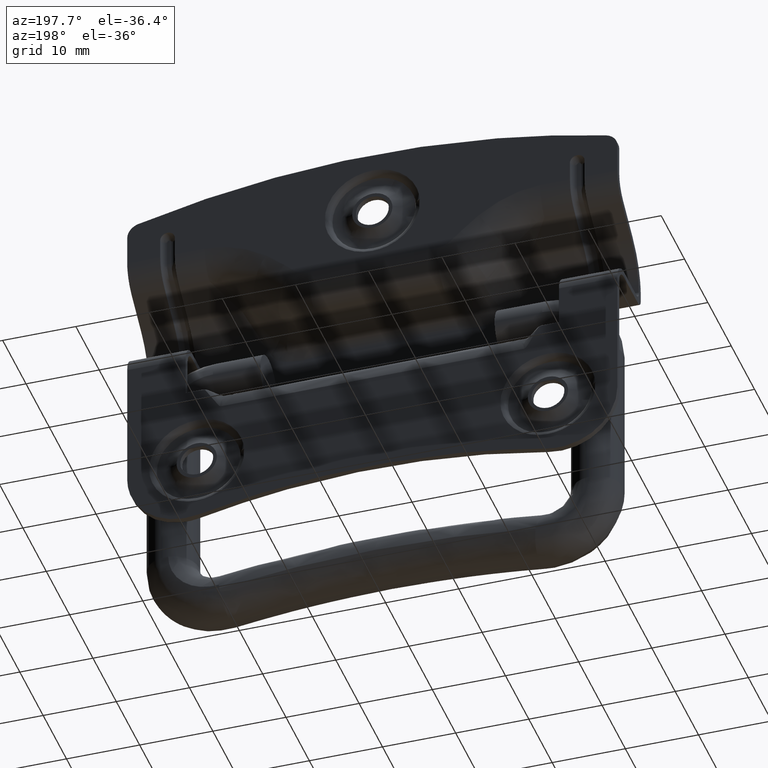
[diagram: clean part render]
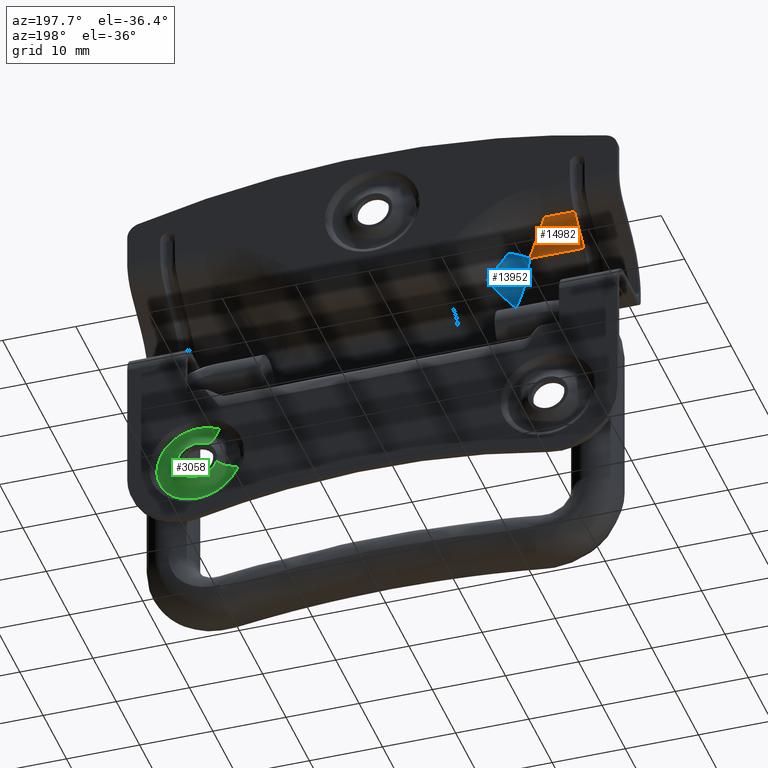
[diagram: same view with three faces highlighted in distinct colors, each labeled with its STEP entity id]
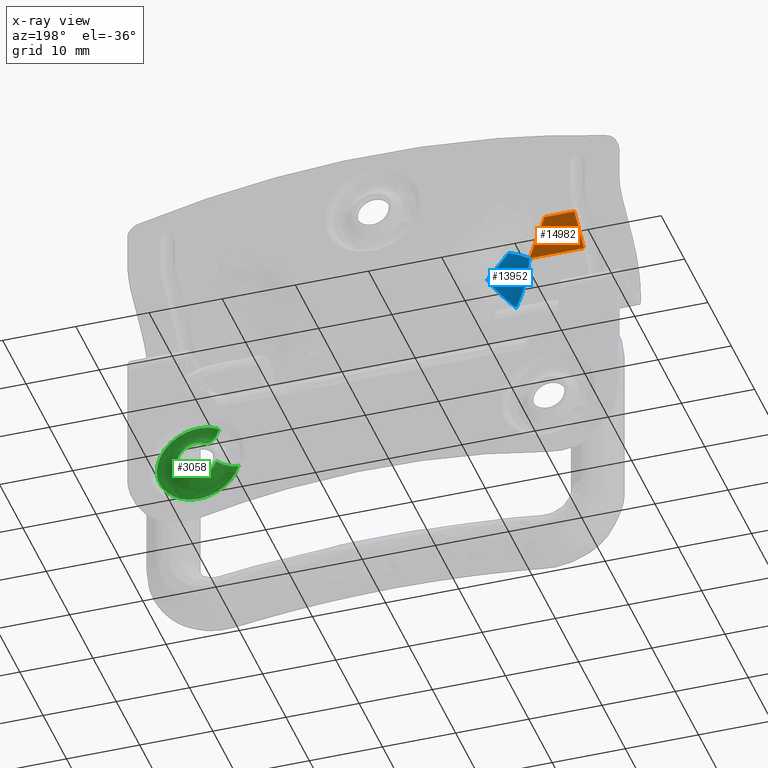
[diagram: x-ray of the same camera — body ghosted, the three highlighted faces saturated]
A machine part, auxiliary view with three faces highlighted in distinct colors.
The next image is the same camera in x-ray (body ghosted, the three faces saturated) — at least one of them is partly hidden behind the body in this view.
Their STEP definitions:

[orange] entity #14982 — the highlighted face is a freeform B-spline surface patch.
#10843=CARTESIAN_POINT('',(-22.923475820353751,3.780000000000115,15.160000000000601));
#10844=VERTEX_POINT('',#10843);
#10858=CARTESIAN_POINT('',(-27.0,3.780000000000000,15.160000000000551));
#10859=VERTEX_POINT('',#10858);
#10860=CARTESIAN_POINT('',(-27.0,3.780000000000000,15.160000000000551));
#10861=CARTESIAN_POINT('',(-22.923475820353751,3.780000000000115,15.160000000000601));
#10862=QUASI_UNIFORM_CURVE('',1,(#10860,#10861),.UNSPECIFIED.,.F.,.U.);
#10863=EDGE_CURVE('',#10859,#10844,#10862,.T.);
#13907=CARTESIAN_POINT('',(-19.585318980685400,-0.299999770619768,12.100000172035459));
#13908=VERTEX_POINT('',#13907);
#14012=CARTESIAN_POINT('',(-22.923475820353751,3.780000000000115,15.160000000000601));
#14013=CARTESIAN_POINT('',(-19.585318980685400,-0.299999770619768,12.100000172035459));
#14014=QUASI_UNIFORM_CURVE('',1,(#14012,#14013),.UNSPECIFIED.,.F.,.U.);
#14015=EDGE_CURVE('',#10844,#13908,#14014,.T.);
#14821=CARTESIAN_POINT('',(-27.0,-0.299999770619768,12.100000172035459));
#14822=VERTEX_POINT('',#14821);
#14836=CARTESIAN_POINT('',(-19.585318980685400,-0.299999770619768,12.100000172035459));
#14837=CARTESIAN_POINT('',(-27.0,-0.299999770619768,12.100000172035459));
#14838=QUASI_UNIFORM_CURVE('',1,(#14836,#14837),.UNSPECIFIED.,.F.,.U.);
#14839=EDGE_CURVE('',#13908,#14822,#14838,.T.);
#14967=CARTESIAN_POINT('',(-27.370363276053229,3.983795889457883,15.312846917093941));
#14968=CARTESIAN_POINT('',(-27.370363276053229,-0.503795550643417,11.947153337017710));
#14969=CARTESIAN_POINT('',(-19.214956036094240,3.983795889457883,15.312846917093941));
#14970=CARTESIAN_POINT('',(-19.214956036094240,-0.503795550643417,11.947153337017710));
#14971=B_SPLINE_SURFACE_WITH_KNOTS('',1,1,((#14967,#14969),(#14968,#14970)),.UNSPECIFIED.,.F.,.F.,.U.,(2,2),(2,2),(0.0,5.609489300126778),(0.0,8.155407239958983),.UNSPECIFIED.);
#14972=CARTESIAN_POINT('',(-27.0,-0.299999770619768,12.100000172035459));
#14973=CARTESIAN_POINT('',(-27.0,3.780000000000000,15.160000000000551));
#14974=QUASI_UNIFORM_CURVE('',1,(#14972,#14973),.UNSPECIFIED.,.F.,.U.);
#14975=EDGE_CURVE('',#14822,#10859,#14974,.T.);
#14976=ORIENTED_EDGE('',*,*,#14975,.T.);
#14977=ORIENTED_EDGE('',*,*,#10863,.T.);
#14978=ORIENTED_EDGE('',*,*,#14015,.T.);
#14979=ORIENTED_EDGE('',*,*,#14839,.T.);
#14980=EDGE_LOOP('',(#14976,#14977,#14978,#14979));
#14981=FACE_OUTER_BOUND('',#14980,.T.);
#14982=ADVANCED_FACE('',(#14981),#14971,.F.);

[blue] entity #13952 — the highlighted face is a freeform B-spline surface patch.
#10930=CARTESIAN_POINT('',(-17.290593837336449,1.554545514222405,12.130590759068740));
#10931=VERTEX_POINT('',#10930);
#11035=CARTESIAN_POINT('',(-15.293577102620651,0.899999999999904,10.392166128210640));
#11036=VERTEX_POINT('',#11035);
#11050=CARTESIAN_POINT('',(-17.290593837336449,1.554545514222405,12.130590759068740));
#11051=CARTESIAN_POINT('',(-17.117731346489158,1.489969893044350,11.996901596663150));
#11052=CARTESIAN_POINT('',(-16.948719537414888,1.425397508481139,11.858787750625041));
#11053=CARTESIAN_POINT('',(-16.614161943319790,1.300946579735866,11.576811152313310));
#11054=CARTESIAN_POINT('',(-16.448631377484840,1.241074090847133,11.432928637069621));
#11055=CARTESIAN_POINT('',(-16.118501549110039,1.128984421325280,11.141211421472230));
#11056=CARTESIAN_POINT('',(-15.953921277880150,1.076746895402701,10.993362565172159));
#11057=CARTESIAN_POINT('',(-15.624286635092380,0.981392190502690,10.694775514834831));
#11058=CARTESIAN_POINT('',(-15.459245139194810,0.938256169626591,10.544029624157410));
#11059=CARTESIAN_POINT('',(-15.293577102620651,0.899999999999904,10.392166128210640));
#11060=B_SPLINE_CURVE_WITH_KNOTS('',3,(#11050,#11051,#11052,#11053,#11054,#11055,#11056,#11057,#11058,#11059),.UNSPECIFIED.,.F.,.U.,(4,2,2,2,4),(0.0,0.250000000000000,0.500000000000001,0.750000000000001,1.0),.UNSPECIFIED.);
#11061=EDGE_CURVE('',#10931,#11036,#11060,.T.);
#13734=CARTESIAN_POINT('',(-16.750733359926400,-3.408998570119250,6.903221350314410));
#13735=VERTEX_POINT('',#13734);
#13736=CARTESIAN_POINT('',(-14.047823925887840,0.545500714940306,9.250217225951371));
#13737=VERTEX_POINT('',#13736);
#13738=CARTESIAN_POINT('',(-16.750733359926429,-3.408998570119254,6.903221350314359));
#13739=CARTESIAN_POINT('',(-16.419907771483171,-3.355335998857890,7.255955449708694));
#13740=CARTESIAN_POINT('',(-16.089179347000549,-3.212957998170468,7.595086989676330));
#13741=CARTESIAN_POINT('',(-15.471097452302070,-2.769360321068948,8.201867195278870));
#13742=CARTESIAN_POINT('',(-15.183925513645409,-2.468270929943377,8.469337648677247));
#13743=CARTESIAN_POINT('',(-14.690813450022899,-1.746821931877613,8.897517729361578));
#13744=CARTESIAN_POINT('',(-14.485018152793520,-1.326674215566522,9.058101599529692));
#13745=CARTESIAN_POINT('',(-14.181818111543000,-0.422387753018799,9.251290818259935));
#13746=CARTESIAN_POINT('',(-14.084502417818760,0.061485402957188,9.283839426865114));
#13747=CARTESIAN_POINT('',(-14.047823925887840,0.545500714940306,9.250217225951371));
#13748=B_SPLINE_CURVE_WITH_KNOTS('',3,(#13738,#13739,#13740,#13741,#13742,#13743,#13744,#13745,#13746,#13747),.UNSPECIFIED.,.F.,.U.,(4,2,2,2,4),(0.0,0.250000000000000,0.500000000000000,0.750000000000000,1.0),.UNSPECIFIED.);
#13749=EDGE_CURVE('',#13735,#13737,#13748,.T.);
#13875=CARTESIAN_POINT('',(-19.585318980682160,-0.299999610044783,12.100000292466691));
#13876=CARTESIAN_POINT('',(-19.289840303858998,-1.022286302826926,11.558285341644600));
#13877=CARTESIAN_POINT('',(-18.896928281386561,-1.720429733563290,10.837941291222331));
#13878=CARTESIAN_POINT('',(-18.172696309418150,-2.553767069323316,9.510172808061734));
#13879=CARTESIAN_POINT('',(-17.909338162568510,-2.795805937602147,9.027345947280486));
#13880=CARTESIAN_POINT('',(-17.350015012798149,-3.181224768585006,8.001912549709497));
#13881=CARTESIAN_POINT('',(-17.054181127753552,-3.324363054670496,7.459546394323228));
#13882=CARTESIAN_POINT('',(-16.750733359926048,-3.408998570119349,6.903221350313733));
#13883=CARTESIAN_POINT('',(-17.885077956707590,0.590301766076866,12.767726239797772));
#13884=CARTESIAN_POINT('',(-17.535867620187723,-0.046048626976868,12.447614384670569));
#13885=CARTESIAN_POINT('',(-17.068794465886629,-0.702137821523665,12.019460809970848));
#13886=CARTESIAN_POINT('',(-16.173865589512669,-1.632128234895977,11.199103240665712));
#13887=CARTESIAN_POINT('',(-15.843582562360115,-1.933019555201221,10.896341548105962));
#13888=CARTESIAN_POINT('',(-15.123227416092655,-2.501824451951979,10.236011087917923));
#13889=CARTESIAN_POINT('',(-14.733256194598226,-2.769673108269402,9.878534810430612));
#13890=CARTESIAN_POINT('',(-14.317585942583579,-3.014322489327364,9.497500913114983));
#13891=CARTESIAN_POINT('',(-16.882409546643881,2.100000194978469,11.848606697027771));
#13892=CARTESIAN_POINT('',(-16.587075048866811,1.739033062809609,11.577881394588470));
#13893=CARTESIAN_POINT('',(-16.194018847392979,1.389785131100215,11.217577197751750));
#13894=CARTESIAN_POINT('',(-15.469786875357411,0.973116466398751,10.553692954152210));
#13895=CARTESIAN_POINT('',(-15.206428728554011,0.852097030469586,10.312279524702220));
#13896=CARTESIAN_POINT('',(-14.647105578736230,0.659387616438615,9.799562825381626));
#13897=CARTESIAN_POINT('',(-14.351277198691150,0.587819241005686,9.528384794163850));
#13898=CARTESIAN_POINT('',(-14.047823925887750,0.545500714941194,9.250217225951291));
#13906=(BOUNDED_SURFACE()B_SPLINE_SURFACE(3,2,((#13875,#13883,#13891),(#13876,#13884,#13892),(#13877,#13885,#13893),(#13878,#13886,#13894),(#13879,#13887,#13895),(#13880,#13888,#13896),(#13881,#13889,#13897),(#13882,#13890,#13898)),.UNSPECIFIED.,.F.,.F.,.U.)B_SPLINE_SURFACE_WITH_KNOTS((4,2,2,4),(3,3),(0.0,3.835972604595909,5.753958906893864,7.671945209191819),(0.0,6.112570198059227),.UNSPECIFIED.)GEOMETRIC_REPRESENTATION_ITEM()RATIONAL_B_SPLINE_SURFACE(((1.0,0.891549588387470,1.0),(1.0,0.877560849178222,1.0),(1.0,0.858669071585450,1.0),(1.0,0.822004598544453,1.0),(1.0,0.808405187441308,1.0),(1.0,0.778636759077480,1.0),(1.0,0.762472385520174,1.0),(1.0,0.745274973956579,1.0)))REPRESENTATION_ITEM('')SURFACE());
#13907=CARTESIAN_POINT('',(-19.585318980685400,-0.299999770619768,12.100000172035459));
#13908=VERTEX_POINT('',#13907);
#13909=CARTESIAN_POINT('',(-19.585318980685400,-0.299999770619768,12.100000172035459));
#13910=CARTESIAN_POINT('',(-18.257304096736487,0.395391858730261,12.621543882368019));
#13911=CARTESIAN_POINT('',(-17.290593837336459,1.554545514222420,12.130590759068751));
#13919=(BOUNDED_CURVE()B_SPLINE_CURVE(2,(#13909,#13910,#13911),.UNSPECIFIED.,.F.,.U.)CURVE()GEOMETRIC_REPRESENTATION_ITEM()QUASI_UNIFORM_CURVE()RATIONAL_B_SPLINE_CURVE((1.0,0.929498878083447,1.0))REPRESENTATION_ITEM(''));
#13920=EDGE_CURVE('',#13908,#10931,#13919,.T.);
#13921=ORIENTED_EDGE('',*,*,#13920,.T.);
#13922=ORIENTED_EDGE('',*,*,#11061,.T.);
#13923=CARTESIAN_POINT('',(-14.047823925887840,0.545500714940306,9.250217225951371));
#13924=CARTESIAN_POINT('',(-14.699929361451604,0.636441043896497,9.847984986216966));
#13925=CARTESIAN_POINT('',(-15.293577102620629,0.899999999999904,10.392166128210640));
#13933=(BOUNDED_CURVE()B_SPLINE_CURVE(2,(#13923,#13924,#13925),.UNSPECIFIED.,.F.,.U.)CURVE()GEOMETRIC_REPRESENTATION_ITEM()QUASI_UNIFORM_CURVE()RATIONAL_B_SPLINE_CURVE((1.0,0.988767248281286,1.0))REPRESENTATION_ITEM(''));
#13934=EDGE_CURVE('',#13737,#11036,#13933,.T.);
#13935=ORIENTED_EDGE('',*,*,#13934,.F.);
#13936=ORIENTED_EDGE('',*,*,#13749,.F.);
#13937=CARTESIAN_POINT('',(-19.585318980685400,-0.299999770619768,12.100000172035459));
#13938=CARTESIAN_POINT('',(-18.514738097744694,-2.916994785489333,10.137254080963253));
#13939=CARTESIAN_POINT('',(-16.750733359926439,-3.408998570119251,6.903221350314390));
#13947=(BOUNDED_CURVE()B_SPLINE_CURVE(2,(#13937,#13938,#13939),.UNSPECIFIED.,.F.,.U.)CURVE()GEOMETRIC_REPRESENTATION_ITEM()QUASI_UNIFORM_CURVE()RATIONAL_B_SPLINE_CURVE((1.0,0.925607097705934,1.0))REPRESENTATION_ITEM(''));
#13948=EDGE_CURVE('',#13908,#13735,#13947,.T.);
#13949=ORIENTED_EDGE('',*,*,#13948,.F.);
#13950=EDGE_LOOP('',(#13921,#13922,#13935,#13936,#13949));
#13951=FACE_OUTER_BOUND('',#13950,.T.);
#13952=ADVANCED_FACE('',(#13951),#13906,.F.);

[green] entity #3058 — the highlighted face is a freeform B-spline surface patch.
#2882=CARTESIAN_POINT('',(18.386389329024748,4.958781823148724,-16.607701135139543));
#2883=CARTESIAN_POINT('',(18.577222969672068,4.958781823148724,-17.274035031473886));
#2884=CARTESIAN_POINT('',(18.918743212890920,4.958781823148724,-17.877178682090022));
#2885=CARTESIAN_POINT('',(21.795921894981248,4.958781823148725,-22.958435469199102));
#2886=CARTESIAN_POINT('',(26.877178682090324,4.958781823148724,-20.081256787108789));
#2887=CARTESIAN_POINT('',(31.958435469199408,4.958781823148725,-17.204078105018475));
#2888=CARTESIAN_POINT('',(29.081256787109091,4.958781823148724,-12.122821317909386));
#2889=CARTESIAN_POINT('',(26.204078105018766,4.958781823148725,-7.041564530800303));
#2890=CARTESIAN_POINT('',(21.122821317909686,4.958781823148724,-9.918743212890618));
#2891=CARTESIAN_POINT('',(20.259305853199216,4.068428506834890,-16.071310174236949));
#2892=CARTESIAN_POINT('',(20.386470048299710,4.068428506834891,-16.515329443104388));
#2893=CARTESIAN_POINT('',(20.614045997132077,4.068428506834890,-16.917241163702535));
#2894=CARTESIAN_POINT('',(22.531287160834925,4.068428506834892,-20.303195166570468));
#2895=CARTESIAN_POINT('',(25.917241163702837,4.068428506834890,-18.385954002867617));
#2896=CARTESIAN_POINT('',(29.303195166570770,4.068428506834892,-16.468712839164787));
#2897=CARTESIAN_POINT('',(27.385954002867923,4.068428506834890,-13.082758836296863));
#2898=CARTESIAN_POINT('',(25.468712839165086,4.068428506834892,-9.696804833428946));
#2899=CARTESIAN_POINT('',(22.082758836297163,4.068428506834890,-11.614045997131779));
#2900=CARTESIAN_POINT('',(21.443242623835314,5.821022214897193,-15.732238478380504));
#2901=CARTESIAN_POINT('',(21.530159110735298,5.821022214897194,-16.035724809067801));
#2902=CARTESIAN_POINT('',(21.685706841445253,5.821022214897194,-16.310430710133041));
#2903=CARTESIAN_POINT('',(22.996137551578592,5.821022214897193,-18.624723868687809));
#2904=CARTESIAN_POINT('',(25.310430710133343,5.821022214897194,-17.314293158554459));
#2905=CARTESIAN_POINT('',(27.624723868688097,5.821022214897193,-16.003862448421124));
#2906=CARTESIAN_POINT('',(26.314293158554751,5.821022214897194,-13.689569289866357));
#2907=CARTESIAN_POINT('',(25.003862448421412,5.821022214897193,-11.375276131311601));
#2908=CARTESIAN_POINT('',(22.689569289866657,5.821022214897194,-12.685706841444949));
#2916=(BOUNDED_SURFACE()B_SPLINE_SURFACE(2,2,((#2882,#2891,#2900),(#2883,#2892,#2901),(#2884,#2893,#2902),(#2885,#2894,#2903),(#2886,#2895,#2904),(#2887,#2896,#2905),(#2888,#2897,#2906),(#2889,#2898,#2907),(#2890,#2899,#2908)),.UNSPECIFIED.,.F.,.F.,.U.)B_SPLINE_SURFACE_WITH_KNOTS((3,2,2,2,3),(3,3),(0.0,1.547976846096095,11.222832134196681,20.897687422297270,30.572542710397862),(0.0,3.724719007622712),.UNSPECIFIED.)GEOMETRIC_REPRESENTATION_ITEM()RATIONAL_B_SPLINE_SURFACE(((0.845599707228248,0.650507947458803,0.846152847639903),(0.874849040049533,0.673009047323750,0.875421313613505),(0.917862764786716,0.706098900066321,0.918463175339389),(0.649026985179320,0.499287320425258,0.649451539552611),(0.917862764786716,0.706098900066321,0.918463175339389),(0.649026985179320,0.499287320425258,0.649451539552611),(0.917862764786716,0.706098900066321,0.918463175339389),(0.649026985179320,0.499287320425258,0.649451539552611),(0.917862764786716,0.706098900066321,0.918463175339389)))REPRESENTATION_ITEM('')SURFACE());
#2917=CARTESIAN_POINT('',(21.356283928032401,5.699999998779800,-15.757142876971720));
#2918=VERTEX_POINT('',#2917);
#2919=CARTESIAN_POINT('',(24.0,5.699999999999901,-17.749999999999702));
#2920=VERTEX_POINT('',#2919);
#2921=CARTESIAN_POINT('',(21.356283928032404,5.699999998779800,-15.757142876971717));
#2922=CARTESIAN_POINT('',(21.927025088746586,5.699999999999900,-17.749999999999702));
#2923=CARTESIAN_POINT('',(24.0,5.699999999999901,-17.749999999999702));
#2931=(BOUNDED_CURVE()B_SPLINE_CURVE(2,(#2921,#2922,#2923),.UNSPECIFIED.,.F.,.U.)B_SPLINE_CURVE_WITH_KNOTS((3,3),(0.796902877652186,1.0),.UNSPECIFIED.)CURVE()GEOMETRIC_REPRESENTATION_ITEM()RATIONAL_B_SPLINE_CURVE((0.910718278800396,0.762056920415197,1.0))REPRESENTATION_ITEM(''));
#2932=EDGE_CURVE('',#2918,#2920,#2931,.T.);
#2933=ORIENTED_EDGE('',*,*,#2932,.T.);
#2934=CARTESIAN_POINT('',(24.0,5.699999999999901,-12.249999999999700));
#2935=VERTEX_POINT('',#2934);
#2936=CARTESIAN_POINT('',(24.0,5.699999999999901,-17.749999999999702));
#2937=CARTESIAN_POINT('',(26.750000000000004,5.699999999999901,-17.749999999999705));
#2938=CARTESIAN_POINT('',(26.750000000000000,5.699999999999901,-14.999999999999700));
#2939=CARTESIAN_POINT('',(26.750000000000004,5.699999999999901,-12.249999999999703));
#2940=CARTESIAN_POINT('',(24.0,5.699999999999901,-12.249999999999700));
#2948=(BOUNDED_CURVE()B_SPLINE_CURVE(2,(#2936,#2937,#2938,#2939,#2940),.UNSPECIFIED.,.F.,.U.)B_SPLINE_CURVE_WITH_KNOTS((3,2,3),(0.0,0.250000000000000,0.500000000000000),.UNSPECIFIED.)CURVE()GEOMETRIC_REPRESENTATION_ITEM()RATIONAL_B_SPLINE_CURVE((1.0,0.707106781186548,1.0,0.707106781186548,1.0))REPRESENTATION_ITEM(''));
#2949=EDGE_CURVE('',#2920,#2935,#2948,.T.);
#2950=ORIENTED_EDGE('',*,*,#2949,.T.);
#2951=CARTESIAN_POINT('',(22.644999809487889,5.699999997968130,-12.606994673514480));
#2952=VERTEX_POINT('',#2951);
#2953=CARTESIAN_POINT('',(24.0,5.699999999999901,-12.249999999999700));
#2954=CARTESIAN_POINT('',(23.275472163133600,5.699999999999903,-12.249999999999705));
#2955=CARTESIAN_POINT('',(22.644999809487892,5.699999997968130,-12.606994673514482));
#2963=(BOUNDED_CURVE()B_SPLINE_CURVE(2,(#2953,#2954,#2955),.UNSPECIFIED.,.F.,.U.)B_SPLINE_CURVE_WITH_KNOTS((3,3),(0.500000000000000,0.583983638543534),.UNSPECIFIED.)CURVE()GEOMETRIC_REPRESENTATION_ITEM()RATIONAL_B_SPLINE_CURVE((1.0,0.901607047117275,0.869321279755620))REPRESENTATION_ITEM(''));
#2964=EDGE_CURVE('',#2935,#2952,#2963,.T.);
#2965=ORIENTED_EDGE('',*,*,#2964,.T.);
#2966=CARTESIAN_POINT('',(21.191454153183891,4.899999999995238,-10.039952598392221));
#2967=VERTEX_POINT('',#2966);
#2968=CARTESIAN_POINT('',(21.191454153183894,4.899999999995238,-10.039952598392215));
#2969=CARTESIAN_POINT('',(22.063386411842398,4.213647856336685,-11.579833223397468));
#2970=CARTESIAN_POINT('',(22.644999809487889,5.699999997968130,-12.606994673514482));
#2978=(BOUNDED_CURVE()B_SPLINE_CURVE(2,(#2968,#2969,#2970),.UNSPECIFIED.,.F.,.U.)B_SPLINE_CURVE_WITH_KNOTS((3,3),(-1.681962426267079,-0.315910158375771),.UNSPECIFIED.)CURVE()GEOMETRIC_REPRESENTATION_ITEM()RATIONAL_B_SPLINE_CURVE((0.899503604224939,0.724485276918312,0.900049582511943))REPRESENTATION_ITEM(''));
#2979=EDGE_CURVE('',#2967,#2952,#2978,.T.);
#2980=ORIENTED_EDGE('',*,*,#2979,.F.);
#2981=CARTESIAN_POINT('',(24.0,4.900000000000000,-9.299999999999582));
#2982=VERTEX_POINT('',#2981);
#2983=CARTESIAN_POINT('',(24.0,4.900000000000000,-9.299999999999582));
#2984=CARTESIAN_POINT('',(22.498251393850662,4.899999999999999,-9.299999999999583));
#2985=CARTESIAN_POINT('',(21.191454153183891,4.899999999995237,-10.039952598392215));
#2993=(BOUNDED_CURVE()B_SPLINE_CURVE(2,(#2983,#2984,#2985),.UNSPECIFIED.,.F.,.U.)B_SPLINE_CURVE_WITH_KNOTS((3,3),(0.500000000000000,0.583983638484351),.UNSPECIFIED.)CURVE()GEOMETRIC_REPRESENTATION_ITEM()RATIONAL_B_SPLINE_CURVE((1.0,0.901607047186613,0.869321279801124))REPRESENTATION_ITEM(''));
#2994=EDGE_CURVE('',#2982,#2967,#2993,.T.);
#2995=ORIENTED_EDGE('',*,*,#2994,.F.);
#2996=CARTESIAN_POINT('',(29.699549951961359,4.900000000046919,-15.071626427375231));
#2997=VERTEX_POINT('',#2996);
#2998=CARTESIAN_POINT('',(29.699549951961355,4.900000000046919,-15.071626427375236));
#2999=CARTESIAN_POINT('',(29.700000000000127,4.900000000000000,-15.035814627593899));
#3000=CARTESIAN_POINT('',(29.700000000000120,4.900000000000000,-14.999999999999700));
#3001=CARTESIAN_POINT('',(29.700000000000124,4.900000000000000,-9.299999999999582));
#3002=CARTESIAN_POINT('',(24.0,4.900000000000000,-9.299999999999582));
#3010=(BOUNDED_CURVE()B_SPLINE_CURVE(2,(#2998,#2999,#3000,#3001,#3002),.UNSPECIFIED.,.F.,.U.)B_SPLINE_CURVE_WITH_KNOTS((3,2,3),(0.247784295919234,0.250000000000000,0.500000000000000),.UNSPECIFIED.)CURVE()GEOMETRIC_REPRESENTATION_ITEM()RATIONAL_B_SPLINE_CURVE((0.994854295638272,0.997404141199385,1.0,0.707106781186548,1.0))REPRESENTATION_ITEM(''));
#3011=EDGE_CURVE('',#2997,#2982,#3010,.T.);
#3012=ORIENTED_EDGE('',*,*,#3011,.F.);
#3013=CARTESIAN_POINT('',(24.0,4.900000000000000,-20.699999999999822));
#3014=VERTEX_POINT('',#3013);
#3015=CARTESIAN_POINT('',(24.0,4.900000000000000,-20.699999999999822));
#3016=CARTESIAN_POINT('',(29.628818000391973,4.899999999999999,-20.699999999999818));
#3017=CARTESIAN_POINT('',(29.699549951961352,4.900000000046919,-15.071626427375227));
#3025=(BOUNDED_CURVE()B_SPLINE_CURVE(2,(#3015,#3016,#3017),.UNSPECIFIED.,.F.,.U.)B_SPLINE_CURVE_WITH_KNOTS((3,3),(0.0,0.247784295919234),.UNSPECIFIED.)CURVE()GEOMETRIC_REPRESENTATION_ITEM()RATIONAL_B_SPLINE_CURVE((1.0,0.709702639987162,0.994854295638271))REPRESENTATION_ITEM(''));
#3026=EDGE_CURVE('',#3014,#2997,#3025,.T.);
#3027=ORIENTED_EDGE('',*,*,#3026,.F.);
#3028=CARTESIAN_POINT('',(18.520297598027380,4.899999999939968,-16.569350688677059));
#3029=VERTEX_POINT('',#3028);
#3030=CARTESIAN_POINT('',(18.520297598027376,4.899999999939968,-16.569350688677059));
#3031=CARTESIAN_POINT('',(19.703288363843619,4.900000000000000,-20.699999999999829));
#3032=CARTESIAN_POINT('',(24.0,4.900000000000000,-20.699999999999822));
#3040=(BOUNDED_CURVE()B_SPLINE_CURVE(2,(#3030,#3031,#3032),.UNSPECIFIED.,.F.,.U.)B_SPLINE_CURVE_WITH_KNOTS((3,3),(0.796902877582956,1.0),.UNSPECIFIED.)CURVE()GEOMETRIC_REPRESENTATION_ITEM()RATIONAL_B_SPLINE_CURVE((0.910718278901745,0.762056920334089,1.0))REPRESENTATION_ITEM(''));
#3041=EDGE_CURVE('',#3029,#3014,#3040,.T.);
#3042=ORIENTED_EDGE('',*,*,#3041,.F.);
#3043=CARTESIAN_POINT('',(18.520297598027383,4.899999999939968,-16.569350688677059));
#3044=CARTESIAN_POINT('',(20.221508671956872,4.213647855943190,-16.082135038081283));
#3045=CARTESIAN_POINT('',(21.356283928032411,5.699999998779800,-15.757142876971720));
#3053=(BOUNDED_CURVE()B_SPLINE_CURVE(2,(#3043,#3044,#3045),.UNSPECIFIED.,.F.,.U.)B_SPLINE_CURVE_WITH_KNOTS((3,3),(-1.681962426130499,-0.315910157449022),.UNSPECIFIED.)CURVE()GEOMETRIC_REPRESENTATION_ITEM()RATIONAL_B_SPLINE_CURVE((0.828685957786417,0.667446770335103,0.829188951619896))REPRESENTATION_ITEM(''));
#3054=EDGE_CURVE('',#3029,#2918,#3053,.T.);
#3055=ORIENTED_EDGE('',*,*,#3054,.T.);
#3056=EDGE_LOOP('',(#2933,#2950,#2965,#2980,#2995,#3012,#3027,#3042,#3055));
#3057=FACE_OUTER_BOUND('',#3056,.T.);
#3058=ADVANCED_FACE('',(#3057),#2916,.F.);